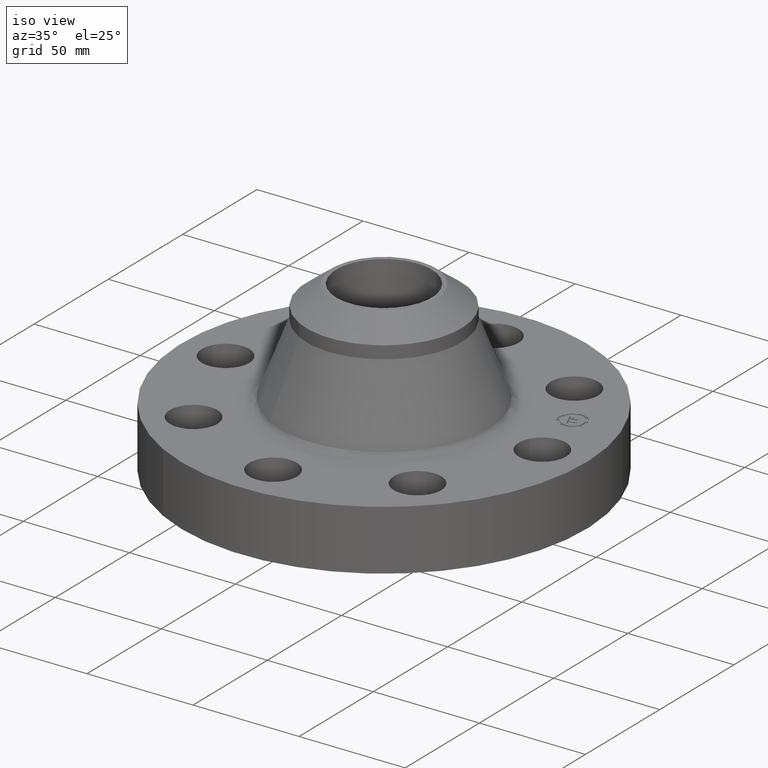
[diagram: clean part render]
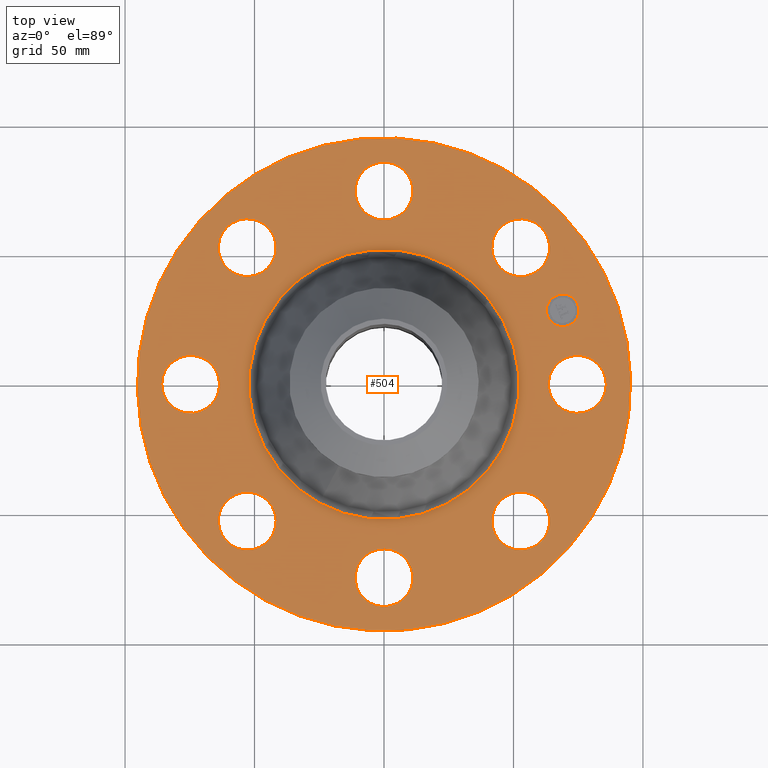
[diagram: tour spotlight — one face highlighted and labeled with its STEP entity id]
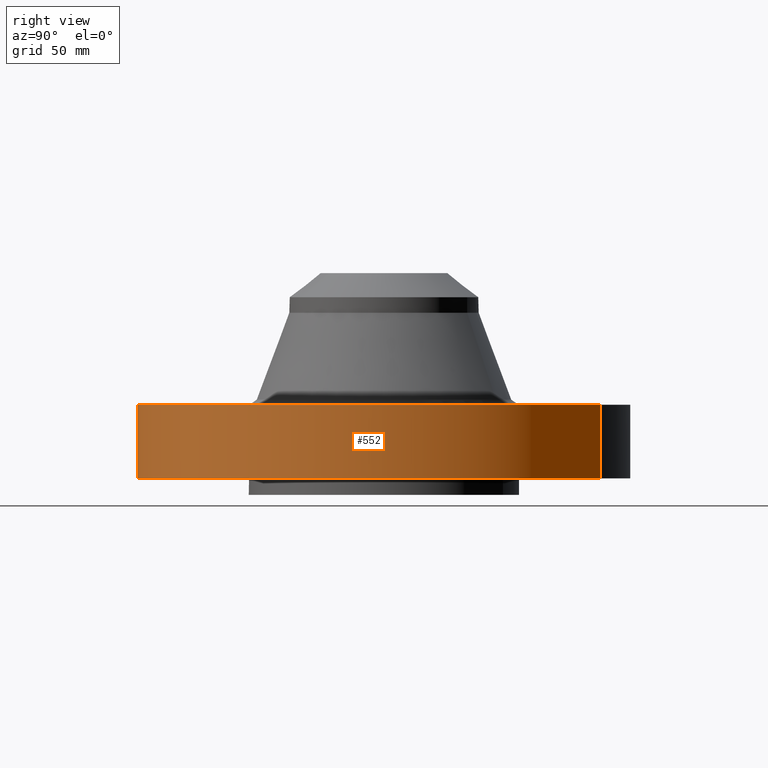
[diagram: tour spotlight — one face highlighted and labeled with its STEP entity id]
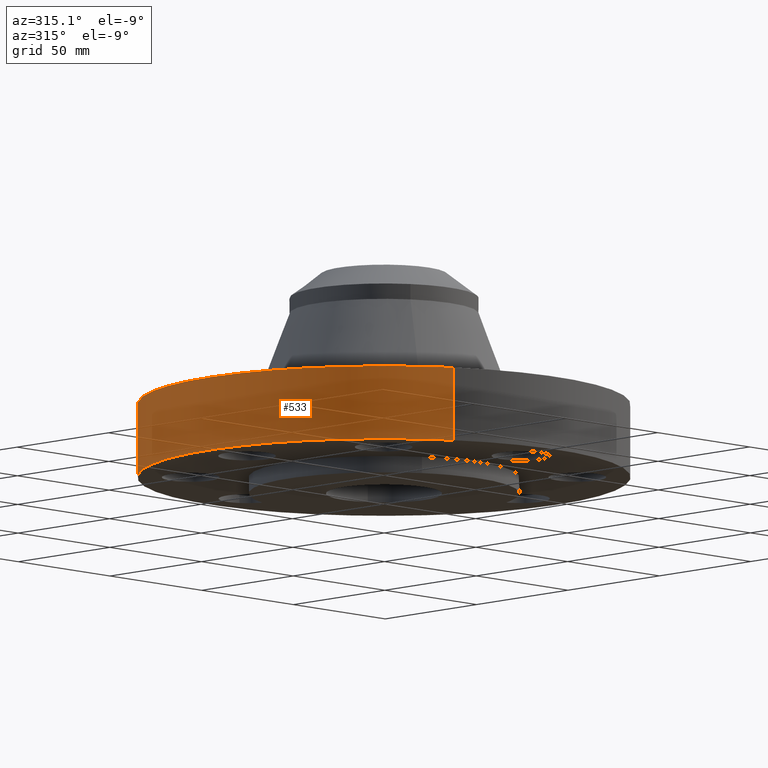
[diagram: tour spotlight — one face highlighted and labeled with its STEP entity id]
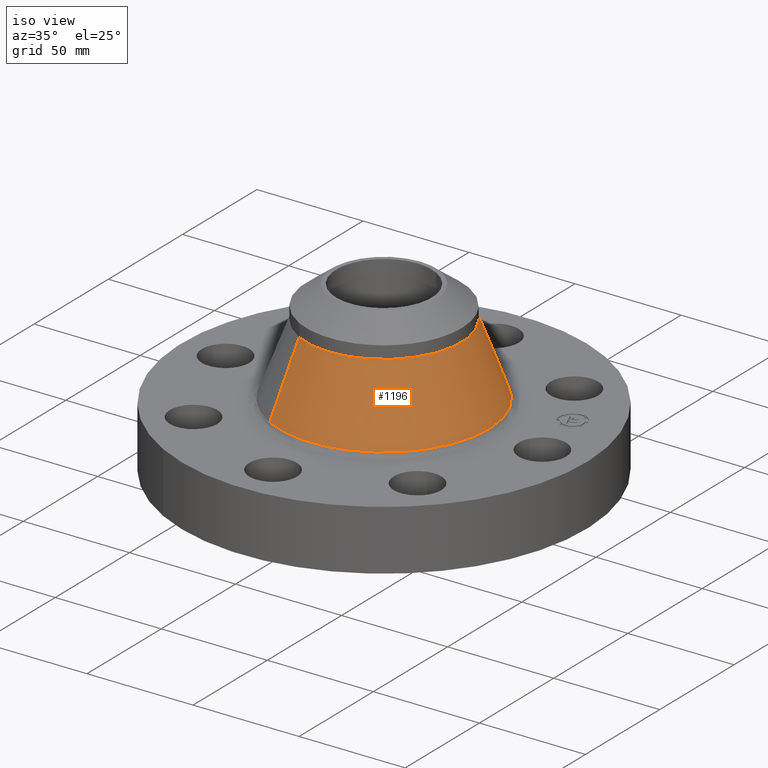
[diagram: tour spotlight — one face highlighted and labeled with its STEP entity id]
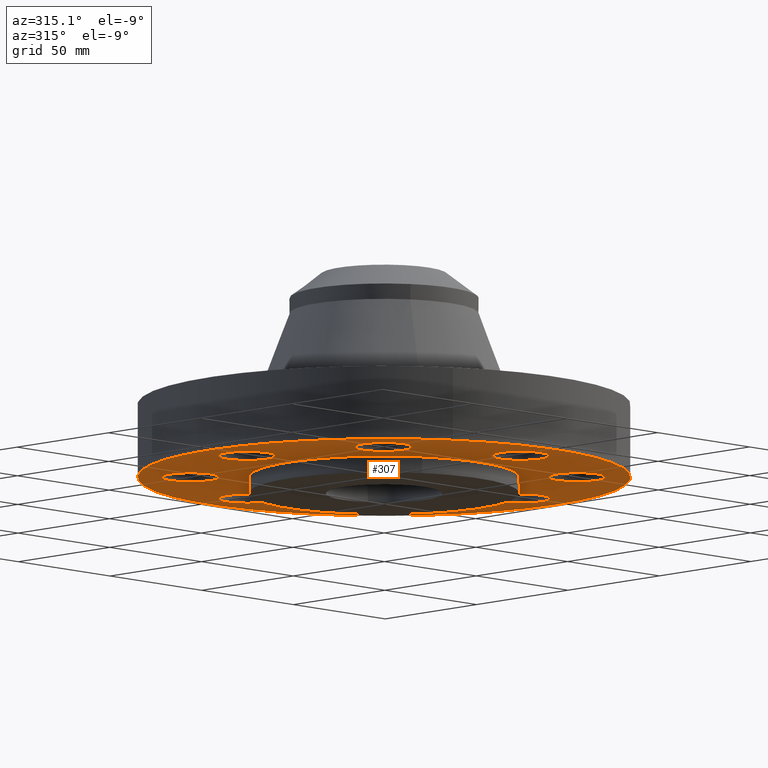
[diagram: tour spotlight — one face highlighted and labeled with its STEP entity id]
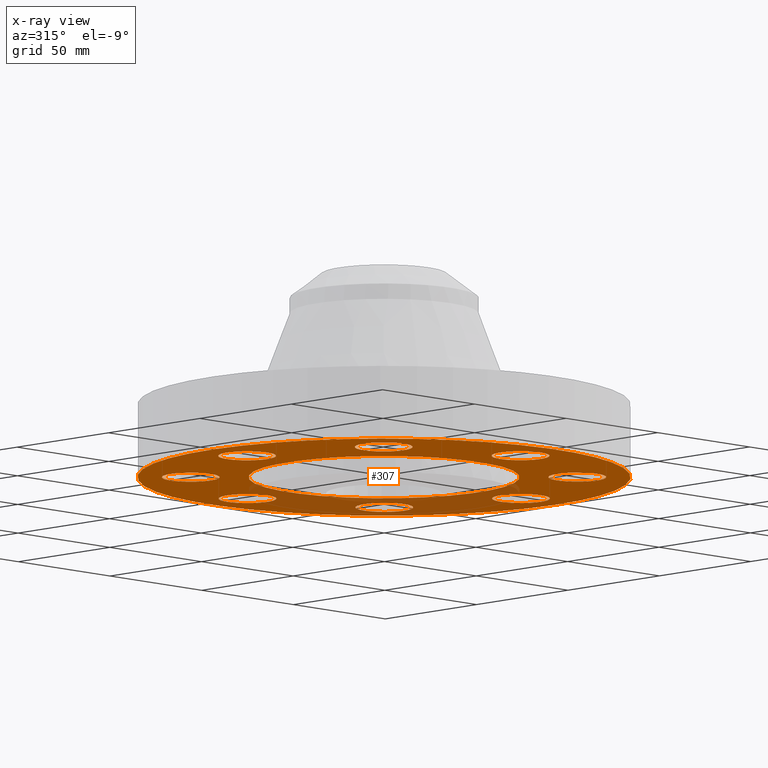
[diagram: x-ray of the same camera — body ghosted, this tour face saturated]
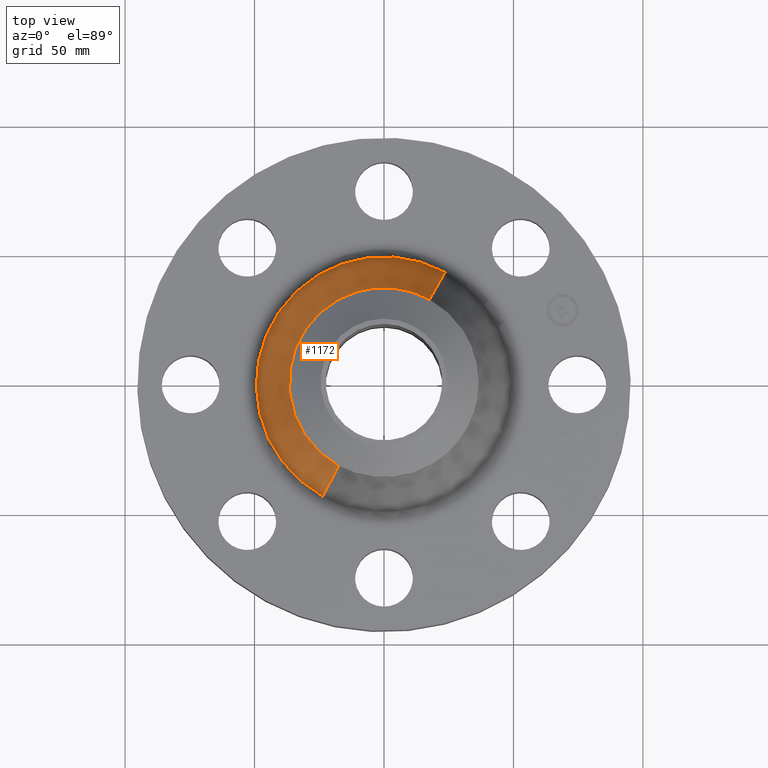
[diagram: tour spotlight — one face highlighted and labeled with its STEP entity id]
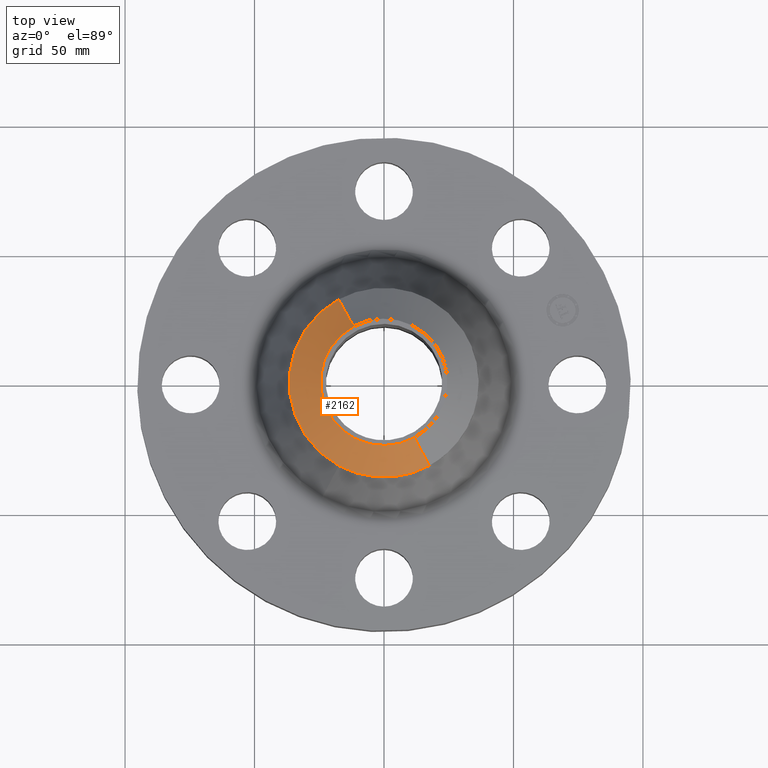
[diagram: tour spotlight — one face highlighted and labeled with its STEP entity id]
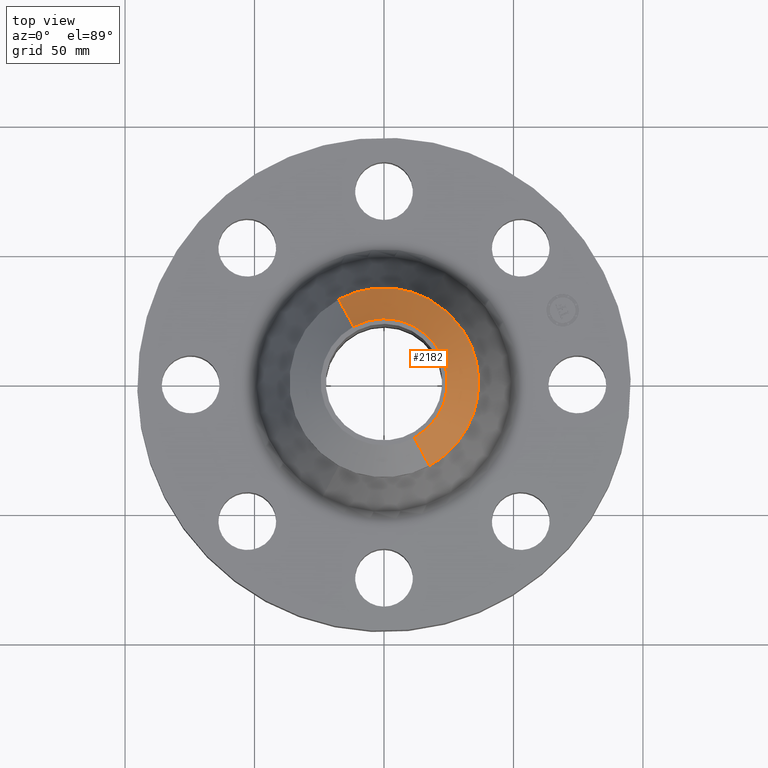
[diagram: tour spotlight — one face highlighted and labeled with its STEP entity id]
A machine part: a face-by-face anatomy tour. The part has 419 B-rep faces; the first image is the clean iso view, then the 8 largest visible faces are spotlighted one at a time (largest first), each with its STEP entity span.

Face 1 — top view, entity #504. In plain terms, the highlighted planar face has unit normal (0, 0, -1).
Definition (entity closure, byte-faithful):
#65=AXIS2_PLACEMENT_3D('Circle Axis2P3D',#63,#64,$) ;
#318=AXIS2_PLACEMENT_3D('Plane Axis2P3D',#315,#316,#317) ;
#322=AXIS2_PLACEMENT_3D('Circle Axis2P3D',#320,#321,$) ;
#331=AXIS2_PLACEMENT_3D('Circle Axis2P3D',#329,#330,$) ;
#344=AXIS2_PLACEMENT_3D('Circle Axis2P3D',#342,#343,$) ;
#353=AXIS2_PLACEMENT_3D('Circle Axis2P3D',#351,#352,$) ;
#362=AXIS2_PLACEMENT_3D('Circle Axis2P3D',#360,#361,$) ;
#371=AXIS2_PLACEMENT_3D('Circle Axis2P3D',#369,#370,$) ;
#380=AXIS2_PLACEMENT_3D('Circle Axis2P3D',#378,#379,$) ;
#389=AXIS2_PLACEMENT_3D('Circle Axis2P3D',#387,#388,$) ;
#398=AXIS2_PLACEMENT_3D('Circle Axis2P3D',#396,#397,$) ;
#407=AXIS2_PLACEMENT_3D('Circle Axis2P3D',#405,#406,$) ;
#416=AXIS2_PLACEMENT_3D('Circle Axis2P3D',#414,#415,$) ;
#425=AXIS2_PLACEMENT_3D('Circle Axis2P3D',#423,#424,$) ;
#434=AXIS2_PLACEMENT_3D('Circle Axis2P3D',#432,#433,$) ;
#443=AXIS2_PLACEMENT_3D('Circle Axis2P3D',#441,#442,$) ;
#452=AXIS2_PLACEMENT_3D('Circle Axis2P3D',#450,#451,$) ;
#461=AXIS2_PLACEMENT_3D('Circle Axis2P3D',#459,#460,$) ;
#470=AXIS2_PLACEMENT_3D('Circle Axis2P3D',#468,#469,$) ;
#479=AXIS2_PLACEMENT_3D('Circle Axis2P3D',#477,#478,$) ;
#488=AXIS2_PLACEMENT_3D('Circle Axis2P3D',#486,#487,$) ;
#497=AXIS2_PLACEMENT_3D('Circle Axis2P3D',#495,#496,$) ;
#46=CARTESIAN_POINT('Vertex',(2.55386367278,0.210947236987,1.11999999999)) ;
#60=CARTESIAN_POINT('Vertex',(3.32613632724,-0.210947236984,1.11999999999)) ;
#63=CARTESIAN_POINT('Axis2P3D Location',(2.94000000001,0.,1.11999999999)) ;
#106=CARTESIAN_POINT('Control Point',(3.32613632724,-0.210947236987,1.11999999999)) ;
#107=CARTESIAN_POINT('Control Point',(3.29300081274,-0.271601389433,1.11999999999)) ;
#108=CARTESIAN_POINT('Control Point',(3.24795588326,-0.325749398821,1.11999999999)) ;
#109=CARTESIAN_POINT('Control Point',(3.1926953225,-0.370262840224,1.11999999999)) ;
#110=CARTESIAN_POINT('Control Point',(3.06769808393,-0.435223603166,1.11999999999)) ;
#111=CARTESIAN_POINT('Control Point',(2.92741808449,-0.448097302225,1.11999999999)) ;
#112=CARTESIAN_POINT('Control Point',(2.85686721097,-0.440497941251,1.11999999999)) ;
#113=CARTESIAN_POINT('Control Point',(2.72254661997,-0.398045742217,1.11999999999)) ;
#114=CARTESIAN_POINT('Control Point',(2.61425060119,-0.307955883249,1.12)) ;
#115=CARTESIAN_POINT('Control Point',(2.56973715979,-0.252695322491,1.12)) ;
#116=CARTESIAN_POINT('Control Point',(2.50477639684,-0.127698083922,1.12)) ;
#117=CARTESIAN_POINT('Control Point',(2.49190269778,0.0125819155223,1.12)) ;
#118=CARTESIAN_POINT('Control Point',(2.49950205876,0.0831327890369,1.12)) ;
#119=CARTESIAN_POINT('Control Point',(2.52072815828,0.150293084541,1.12)) ;
#120=CARTESIAN_POINT('Control Point',(2.55386367278,0.210947236987,1.12)) ;
#315=CARTESIAN_POINT('Axis2P3D Location',(0.,3.75000000002,1.12)) ;
#320=CARTESIAN_POINT('Axis2P3D Location',(1.67844740731E-015,2.00009387879E-011,1.12)) ;
#324=CARTESIAN_POINT('Vertex',(1.79784576977,3.29093460711,1.12)) ;
#326=CARTESIAN_POINT('Vertex',(-1.79784576978,-3.29093460711,1.12)) ;
#329=CARTESIAN_POINT('Axis2P3D Location',(3.08521012762E-011,3.14429147636E-012,1.12)) ;
#342=CARTESIAN_POINT('Axis2P3D Location',(1.28121485424E-011,-2.36649894781E-011,1.12)) ;
#346=CARTESIAN_POINT('Vertex',(-0.984191432936,-1.8015503338,1.12)) ;
#348=CARTESIAN_POINT('Vertex',(0.98419143294,1.80155033381,1.12)) ;
#351=CARTESIAN_POINT('Axis2P3D Location',(-1.28121485424E-011,-9.66673810115E-012,1.12)) ;
#360=CARTESIAN_POINT('Axis2P3D Location',(2.07889393664,-2.07889393672,1.12)) ;
#364=CARTESIAN_POINT('Vertex',(2.20277133038,-2.50109577388,1.12)) ;
#366=CARTESIAN_POINT('Vertex',(1.955016543,-1.6566920995,1.11999999999)) ;
#369=CARTESIAN_POINT('Axis2P3D Location',(2.07889393673,-2.07889393669,1.12)) ;
#378=CARTESIAN_POINT('Axis2P3D Location',(3.49676543189E-017,-2.94000000002,1.12)) ;
#382=CARTESIAN_POINT('Vertex',(-0.210947236984,-3.32613632724,1.11999999999)) ;
#384=CARTESIAN_POINT('Vertex',(0.210947236987,-2.55386367278,1.11999999999)) ;
#387=CARTESIAN_POINT('Axis2P3D Location',(-3.49676543189E-017,-2.94000000002,1.12)) ;
#396=CARTESIAN_POINT('Axis2P3D Location',(-2.07889393667,-2.07889393675,1.12)) ;
#400=CARTESIAN_POINT('Vertex',(-2.5010957739,-2.20277133044,1.12)) ;
#402=CARTESIAN_POINT('Vertex',(-1.6566920995,-1.955016543,1.11999999999)) ;
#405=CARTESIAN_POINT('Axis2P3D Location',(-2.0788939367,-2.07889393666,1.12)) ;
#414=CARTESIAN_POINT('Axis2P3D Location',(-2.93999999999,3.28119683655E-011,1.12)) ;
#418=CARTESIAN_POINT('Vertex',(-3.32613632724,0.210947236984,1.11999999999)) ;
#420=CARTESIAN_POINT('Vertex',(-2.55386367278,-0.210947236987,1.11999999999)) ;
#423=CARTESIAN_POINT('Axis2P3D Location',(-2.94000000001,7.1887902455E-012,1.12)) ;
#432=CARTESIAN_POINT('Axis2P3D Location',(-2.07889393669,2.07889393671,1.12)) ;
#436=CARTESIAN_POINT('Vertex',(-2.20277133038,2.50109577392,1.12)) ;
#438=CARTESIAN_POINT('Vertex',(-1.955016543,1.6566920995,1.11999999999)) ;
#441=CARTESIAN_POINT('Axis2P3D Location',(-2.07889393669,2.07889393671,1.12)) ;
#450=CARTESIAN_POINT('Axis2P3D Location',(1.28117289306E-011,2.94000000001,1.12)) ;
#454=CARTESIAN_POINT('Vertex',(0.210947236984,3.32613632724,1.11999999999)) ;
#456=CARTESIAN_POINT('Vertex',(-0.210947236987,2.55386367278,1.11999999999)) ;
#459=CARTESIAN_POINT('Axis2P3D Location',(-1.28117289306E-011,2.94000000003,1.12)) ;
#468=CARTESIAN_POINT('Axis2P3D Location',(2.07889393669,2.07889393671,1.12)) ;
#472=CARTESIAN_POINT('Vertex',(2.5010957739,2.2027713304,1.12)) ;
#474=CARTESIAN_POINT('Vertex',(1.6566920995,1.955016543,1.11999999999)) ;
#477=CARTESIAN_POINT('Axis2P3D Location',(2.07889393669,2.07889393671,1.12)) ;
#486=CARTESIAN_POINT('Axis2P3D Location',(2.71620582554,1.12508929115,1.12)) ;
#490=CARTESIAN_POINT('Vertex',(2.62149167606,1.35374947548,1.12)) ;
#492=CARTESIAN_POINT('Vertex',(2.8109199751,0.896429106848,1.12)) ;
#495=CARTESIAN_POINT('Axis2P3D Location',(2.71620582563,1.12508929118,1.12)) ;
#64=DIRECTION('Axis2P3D Direction',(0.,-0.,-0.0393700787402)) ;
#316=DIRECTION('Axis2P3D Direction',(0.,0.,-0.0393700787402)) ;
#317=DIRECTION('Axis2P3D XDirection',(0.0393700787402,0.,0.)) ;
#321=DIRECTION('Axis2P3D Direction',(0.,0.,-0.0393700787402)) ;
#330=DIRECTION('Axis2P3D Direction',(0.,0.,-0.0393700787402)) ;
#343=DIRECTION('Axis2P3D Direction',(0.,0.,-0.0393700787402)) ;
#352=DIRECTION('Axis2P3D Direction',(0.,0.,-0.0393700787402)) ;
#361=DIRECTION('Axis2P3D Direction',(0.,0.,-0.0393700787402)) ;
#370=DIRECTION('Axis2P3D Direction',(0.,0.,-0.0393700787402)) ;
#379=DIRECTION('Axis2P3D Direction',(0.,0.,-0.0393700787402)) ;
#388=DIRECTION('Axis2P3D Direction',(0.,0.,-0.0393700787402)) ;
#397=DIRECTION('Axis2P3D Direction',(0.,0.,-0.0393700787402)) ;
#406=DIRECTION('Axis2P3D Direction',(0.,0.,-0.0393700787402)) ;
#415=DIRECTION('Axis2P3D Direction',(0.,0.,-0.0393700787402)) ;
#424=DIRECTION('Axis2P3D Direction',(0.,0.,-0.0393700787402)) ;
#433=DIRECTION('Axis2P3D Direction',(0.,0.,-0.0393700787402)) ;
#442=DIRECTION('Axis2P3D Direction',(0.,0.,-0.0393700787402)) ;
#451=DIRECTION('Axis2P3D Direction',(0.,0.,-0.0393700787402)) ;
#460=DIRECTION('Axis2P3D Direction',(0.,0.,-0.0393700787402)) ;
#469=DIRECTION('Axis2P3D Direction',(0.,0.,-0.0393700787402)) ;
#478=DIRECTION('Axis2P3D Direction',(0.,0.,-0.0393700787402)) ;
#487=DIRECTION('Axis2P3D Direction',(0.,0.,-0.0393700787402)) ;
#496=DIRECTION('Axis2P3D Direction',(0.,0.,-0.0393700787402)) ;
#335=ORIENTED_EDGE('',*,*,#328,.F.) ;
#336=ORIENTED_EDGE('',*,*,#333,.F.) ;
#339=ORIENTED_EDGE('',*,*,#67,.T.) ;
#340=ORIENTED_EDGE('',*,*,#121,.T.) ;
#357=ORIENTED_EDGE('',*,*,#350,.T.) ;
#358=ORIENTED_EDGE('',*,*,#355,.T.) ;
#375=ORIENTED_EDGE('',*,*,#368,.T.) ;
#376=ORIENTED_EDGE('',*,*,#373,.T.) ;
#393=ORIENTED_EDGE('',*,*,#386,.T.) ;
#394=ORIENTED_EDGE('',*,*,#391,.T.) ;
#411=ORIENTED_EDGE('',*,*,#404,.T.) ;
#412=ORIENTED_EDGE('',*,*,#409,.T.) ;
#429=ORIENTED_EDGE('',*,*,#422,.T.) ;
#430=ORIENTED_EDGE('',*,*,#427,.T.) ;
#447=ORIENTED_EDGE('',*,*,#440,.T.) ;
#448=ORIENTED_EDGE('',*,*,#445,.T.) ;
#465=ORIENTED_EDGE('',*,*,#458,.T.) ;
#466=ORIENTED_EDGE('',*,*,#463,.T.) ;
#483=ORIENTED_EDGE('',*,*,#476,.T.) ;
#484=ORIENTED_EDGE('',*,*,#481,.T.) ;
#501=ORIENTED_EDGE('',*,*,#494,.T.) ;
#502=ORIENTED_EDGE('',*,*,#499,.T.) ;
#341=FACE_BOUND('',#338,.T.) ;
#359=FACE_BOUND('',#356,.T.) ;
#377=FACE_BOUND('',#374,.T.) ;
#395=FACE_BOUND('',#392,.T.) ;
#413=FACE_BOUND('',#410,.T.) ;
#431=FACE_BOUND('',#428,.T.) ;
#449=FACE_BOUND('',#446,.T.) ;
#467=FACE_BOUND('',#464,.T.) ;
#485=FACE_BOUND('',#482,.T.) ;
#503=FACE_BOUND('',#500,.T.) ;
#504=ADVANCED_FACE('PartBody',(#337,#341,#359,#377,#395,#413,#431,#449,#467,#485,#503),#319,.F.) ;
#105=B_SPLINE_CURVE_WITH_KNOTS('',5,(#106,#107,#108,#109,#110,#111,#112,#113,#114,#115,#116,#117,#118,#119,#120),.UNSPECIFIED.,.F.,.U.,(6,3,3,3,6),(-17.5552197483,-8.77760987417,0.,8.77760987417,17.5552197483),.UNSPECIFIED.) ;
#66=CIRCLE('generated circle',#65,0.440000000002) ;
#323=CIRCLE('generated circle',#322,3.75000000005) ;
#332=CIRCLE('generated circle',#331,3.75000000005) ;
#345=CIRCLE('generated circle',#344,2.05285566513) ;
#354=CIRCLE('generated circle',#353,2.05285566513) ;
#363=CIRCLE('generated circle',#362,0.439999999984) ;
#372=CIRCLE('generated circle',#371,0.439999999984) ;
#381=CIRCLE('generated circle',#380,0.44000000002) ;
#390=CIRCLE('generated circle',#389,0.44000000002) ;
#399=CIRCLE('generated circle',#398,0.44000000003) ;
#408=CIRCLE('generated circle',#407,0.44000000003) ;
#417=CIRCLE('generated circle',#416,0.439999999988) ;
#426=CIRCLE('generated circle',#425,0.439999999988) ;
#435=CIRCLE('generated circle',#434,0.440000000019) ;
#444=CIRCLE('generated circle',#443,0.440000000019) ;
#453=CIRCLE('generated circle',#452,0.439999999988) ;
#462=CIRCLE('generated circle',#461,0.439999999988) ;
#471=CIRCLE('generated circle',#470,0.440000000019) ;
#480=CIRCLE('generated circle',#479,0.440000000019) ;
#489=CIRCLE('generated circle',#488,0.247500000023) ;
#498=CIRCLE('generated circle',#497,0.247500000023) ;
#67=EDGE_CURVE('',#47,#61,#66,.T.) ;
#121=EDGE_CURVE('',#61,#47,#105,.T.) ;
#328=EDGE_CURVE('',#325,#327,#323,.T.) ;
#333=EDGE_CURVE('',#327,#325,#332,.T.) ;
#350=EDGE_CURVE('',#347,#349,#345,.T.) ;
#355=EDGE_CURVE('',#349,#347,#354,.T.) ;
#368=EDGE_CURVE('',#365,#367,#363,.T.) ;
#373=EDGE_CURVE('',#367,#365,#372,.T.) ;
#386=EDGE_CURVE('',#383,#385,#381,.T.) ;
#391=EDGE_CURVE('',#385,#383,#390,.T.) ;
#404=EDGE_CURVE('',#401,#403,#399,.T.) ;
#409=EDGE_CURVE('',#403,#401,#408,.T.) ;
#422=EDGE_CURVE('',#419,#421,#417,.T.) ;
#427=EDGE_CURVE('',#421,#419,#426,.T.) ;
#440=EDGE_CURVE('',#437,#439,#435,.T.) ;
#445=EDGE_CURVE('',#439,#437,#444,.T.) ;
#458=EDGE_CURVE('',#455,#457,#453,.T.) ;
#463=EDGE_CURVE('',#457,#455,#462,.T.) ;
#476=EDGE_CURVE('',#473,#475,#471,.T.) ;
#481=EDGE_CURVE('',#475,#473,#480,.T.) ;
#494=EDGE_CURVE('',#491,#493,#489,.T.) ;
#499=EDGE_CURVE('',#493,#491,#498,.T.) ;
#334=EDGE_LOOP('',(#335,#336)) ;
#338=EDGE_LOOP('',(#339,#340)) ;
#356=EDGE_LOOP('',(#357,#358)) ;
#374=EDGE_LOOP('',(#375,#376)) ;
#392=EDGE_LOOP('',(#393,#394)) ;
#410=EDGE_LOOP('',(#411,#412)) ;
#428=EDGE_LOOP('',(#429,#430)) ;
#446=EDGE_LOOP('',(#447,#448)) ;
#464=EDGE_LOOP('',(#465,#466)) ;
#482=EDGE_LOOP('',(#483,#484)) ;
#500=EDGE_LOOP('',(#501,#502)) ;
#337=FACE_OUTER_BOUND('',#334,.T.) ;
#319=PLANE('',#318) ;
#47=VERTEX_POINT('',#46) ;
#61=VERTEX_POINT('',#60) ;
#325=VERTEX_POINT('',#324) ;
#327=VERTEX_POINT('',#326) ;
#347=VERTEX_POINT('',#346) ;
#349=VERTEX_POINT('',#348) ;
#365=VERTEX_POINT('',#364) ;
#367=VERTEX_POINT('',#366) ;
#383=VERTEX_POINT('',#382) ;
#385=VERTEX_POINT('',#384) ;
#401=VERTEX_POINT('',#400) ;
#403=VERTEX_POINT('',#402) ;
#419=VERTEX_POINT('',#418) ;
#421=VERTEX_POINT('',#420) ;
#437=VERTEX_POINT('',#436) ;
#439=VERTEX_POINT('',#438) ;
#455=VERTEX_POINT('',#454) ;
#457=VERTEX_POINT('',#456) ;
#473=VERTEX_POINT('',#472) ;
#475=VERTEX_POINT('',#474) ;
#491=VERTEX_POINT('',#490) ;
#493=VERTEX_POINT('',#492) ;

Face 2 — right view, entity #552. In plain terms, the highlighted cylindrical surface (partial cylindrical patch) has radius 95.25 mm, axis along (0, 0, -1).
Definition (entity closure, byte-faithful):
#152=AXIS2_PLACEMENT_3D('Circle Axis2P3D',#150,#151,$) ;
#322=AXIS2_PLACEMENT_3D('Circle Axis2P3D',#320,#321,$) ;
#544=AXIS2_PLACEMENT_3D('Cylinder Axis2P3D',#541,#542,#543) ;
#145=CARTESIAN_POINT('Vertex',(-1.79784576981,-3.29093460708,0.)) ;
#147=CARTESIAN_POINT('Vertex',(1.79784576978,3.29093460711,-2.75463991075E-011)) ;
#150=CARTESIAN_POINT('Axis2P3D Location',(1.28121485424E-011,2.12099804037E-012,0.)) ;
#320=CARTESIAN_POINT('Axis2P3D Location',(1.67844740731E-015,2.00009387879E-011,1.12)) ;
#324=CARTESIAN_POINT('Vertex',(1.79784576977,3.29093460711,1.12)) ;
#326=CARTESIAN_POINT('Vertex',(-1.79784576978,-3.29093460711,1.12)) ;
#517=CARTESIAN_POINT('Line Origine',(-1.79784576978,-3.29093460711,0.559999999988)) ;
#522=CARTESIAN_POINT('Line Origine',(1.79784576978,3.29093460711,0.559999999988)) ;
#541=CARTESIAN_POINT('Axis2P3D Location',(0.,0.,1.43500000001)) ;
#151=DIRECTION('Axis2P3D Direction',(0.,0.,-0.0393700787402)) ;
#321=DIRECTION('Axis2P3D Direction',(0.,0.,-0.0393700787402)) ;
#518=DIRECTION('Vector Direction',(0.,0.,-0.0393700787402)) ;
#523=DIRECTION('Vector Direction',(0.,0.,-0.0393700787402)) ;
#542=DIRECTION('Axis2P3D Direction',(0.,0.,-0.0393700787402)) ;
#543=DIRECTION('Axis2P3D XDirection',(0.0188750212049,0.0345504945626,0.)) ;
#519=VECTOR('Line Direction',#518,0.0393700787402) ;
#524=VECTOR('Line Direction',#523,0.0393700787402) ;
#547=ORIENTED_EDGE('',*,*,#154,.F.) ;
#548=ORIENTED_EDGE('',*,*,#526,.T.) ;
#549=ORIENTED_EDGE('',*,*,#328,.T.) ;
#550=ORIENTED_EDGE('',*,*,#521,.F.) ;
#552=ADVANCED_FACE('PartBody',(#551),#545,.T.) ;
#153=CIRCLE('generated circle',#152,3.75000000002) ;
#323=CIRCLE('generated circle',#322,3.75000000005) ;
#545=CYLINDRICAL_SURFACE('generated cylinder',#544,3.75000000002) ;
#154=EDGE_CURVE('',#148,#146,#153,.T.) ;
#328=EDGE_CURVE('',#325,#327,#323,.T.) ;
#521=EDGE_CURVE('',#146,#327,#520,.F.) ;
#526=EDGE_CURVE('',#148,#325,#525,.F.) ;
#546=EDGE_LOOP('',(#547,#548,#549,#550)) ;
#551=FACE_OUTER_BOUND('',#546,.T.) ;
#520=LINE('Line',#517,#519) ;
#525=LINE('Line',#522,#524) ;
#146=VERTEX_POINT('',#145) ;
#148=VERTEX_POINT('',#147) ;
#325=VERTEX_POINT('',#324) ;
#327=VERTEX_POINT('',#326) ;

Face 3 — auxiliary view, entity #533. In plain terms, the highlighted cylindrical surface (partial cylindrical patch) has radius 95.25 mm, axis along (0, 0, -1).
Definition (entity closure, byte-faithful):
#143=AXIS2_PLACEMENT_3D('Circle Axis2P3D',#141,#142,$) ;
#331=AXIS2_PLACEMENT_3D('Circle Axis2P3D',#329,#330,$) ;
#515=AXIS2_PLACEMENT_3D('Cylinder Axis2P3D',#512,#513,#514) ;
#141=CARTESIAN_POINT('Axis2P3D Location',(-1.28121485424E-011,1.61192494173E-011,0.)) ;
#145=CARTESIAN_POINT('Vertex',(-1.79784576981,-3.29093460708,0.)) ;
#147=CARTESIAN_POINT('Vertex',(1.79784576978,3.29093460711,-2.75463991075E-011)) ;
#324=CARTESIAN_POINT('Vertex',(1.79784576977,3.29093460711,1.12)) ;
#326=CARTESIAN_POINT('Vertex',(-1.79784576978,-3.29093460711,1.12)) ;
#329=CARTESIAN_POINT('Axis2P3D Location',(3.08521012762E-011,3.14429147636E-012,1.12)) ;
#512=CARTESIAN_POINT('Axis2P3D Location',(0.,0.,1.43500000001)) ;
#517=CARTESIAN_POINT('Line Origine',(-1.79784576978,-3.29093460711,0.559999999988)) ;
#522=CARTESIAN_POINT('Line Origine',(1.79784576978,3.29093460711,0.559999999988)) ;
#142=DIRECTION('Axis2P3D Direction',(0.,0.,-0.0393700787402)) ;
#330=DIRECTION('Axis2P3D Direction',(0.,0.,-0.0393700787402)) ;
#513=DIRECTION('Axis2P3D Direction',(0.,0.,-0.0393700787402)) ;
#514=DIRECTION('Axis2P3D XDirection',(-0.0188750212049,-0.0345504945626,0.)) ;
#518=DIRECTION('Vector Direction',(0.,0.,-0.0393700787402)) ;
#523=DIRECTION('Vector Direction',(0.,0.,-0.0393700787402)) ;
#519=VECTOR('Line Direction',#518,0.0393700787402) ;
#524=VECTOR('Line Direction',#523,0.0393700787402) ;
#528=ORIENTED_EDGE('',*,*,#149,.F.) ;
#529=ORIENTED_EDGE('',*,*,#521,.T.) ;
#530=ORIENTED_EDGE('',*,*,#333,.T.) ;
#531=ORIENTED_EDGE('',*,*,#526,.F.) ;
#533=ADVANCED_FACE('PartBody',(#532),#516,.T.) ;
#144=CIRCLE('generated circle',#143,3.75000000002) ;
#332=CIRCLE('generated circle',#331,3.75000000005) ;
#516=CYLINDRICAL_SURFACE('generated cylinder',#515,3.75000000002) ;
#149=EDGE_CURVE('',#146,#148,#144,.T.) ;
#333=EDGE_CURVE('',#327,#325,#332,.T.) ;
#521=EDGE_CURVE('',#146,#327,#520,.F.) ;
#526=EDGE_CURVE('',#148,#325,#525,.F.) ;
#527=EDGE_LOOP('',(#528,#529,#530,#531)) ;
#532=FACE_OUTER_BOUND('',#527,.T.) ;
#520=LINE('Line',#517,#519) ;
#525=LINE('Line',#522,#524) ;
#146=VERTEX_POINT('',#145) ;
#148=VERTEX_POINT('',#147) ;
#325=VERTEX_POINT('',#324) ;
#327=VERTEX_POINT('',#326) ;

Face 4 — iso view, entity #1196. In plain terms, the highlighted conical surface has half-angle 20.753 deg.
Definition (entity closure, byte-faithful):
#1015=AXIS2_PLACEMENT_3D('Circle Axis2P3D',#1013,#1014,$) ;
#1183=AXIS2_PLACEMENT_3D('Cone Axis2P3D',#1180,#1181,#1182) ;
#1187=AXIS2_PLACEMENT_3D('Circle Axis2P3D',#1185,#1186,$) ;
#979=CARTESIAN_POINT('Vertex',(-0.930393049894,-1.7030730542,1.19747989437)) ;
#986=CARTESIAN_POINT('Vertex',(0.930393049895,1.7030730542,1.19747989437)) ;
#1013=CARTESIAN_POINT('Axis2P3D Location',(0.,0.,1.19747989437)) ;
#1147=CARTESIAN_POINT('Line Origine',(-0.810382912747,-1.48339597167,1.85809802749)) ;
#1151=CARTESIAN_POINT('Vertex',(-0.690372775594,-1.26371888913,2.51871616061)) ;
#1158=CARTESIAN_POINT('Vertex',(0.690372775595,1.26371888913,2.51871616061)) ;
#1161=CARTESIAN_POINT('Line Origine',(0.810382912747,1.48339597167,1.85809802749)) ;
#1180=CARTESIAN_POINT('Axis2P3D Location',(0.,0.,2.51871616061)) ;
#1185=CARTESIAN_POINT('Axis2P3D Location',(0.,0.,2.51871616061)) ;
#1014=DIRECTION('Axis2P3D Direction',(-0.,0.,-0.0393700787402)) ;
#1148=DIRECTION('Vector Direction',(-0.00668806579644,-0.0122424223224,-0.0368157027855)) ;
#1162=DIRECTION('Vector Direction',(0.00668806579644,0.0122424223224,-0.0368157027855)) ;
#1181=DIRECTION('Axis2P3D Direction',(0.,0.,-0.0393700787402)) ;
#1182=DIRECTION('Axis2P3D XDirection',(0.0188750212049,0.0345504945626,0.)) ;
#1186=DIRECTION('Axis2P3D Direction',(-0.,0.,-0.0393700787402)) ;
#1149=VECTOR('Line Direction',#1148,0.0393700787402) ;
#1163=VECTOR('Line Direction',#1162,0.0393700787402) ;
#1191=ORIENTED_EDGE('',*,*,#1017,.F.) ;
#1192=ORIENTED_EDGE('',*,*,#1165,.T.) ;
#1193=ORIENTED_EDGE('',*,*,#1189,.T.) ;
#1194=ORIENTED_EDGE('',*,*,#1153,.F.) ;
#1196=ADVANCED_FACE('PartBody',(#1195),#1184,.T.) ;
#1016=CIRCLE('generated circle',#1015,1.94064140305) ;
#1188=CIRCLE('generated circle',#1187,1.44000000001) ;
#1184=CONICAL_SURFACE('Cone',#1183,1.44000000001,0.362201990694) ;
#1017=EDGE_CURVE('',#987,#980,#1016,.T.) ;
#1153=EDGE_CURVE('',#980,#1152,#1150,.F.) ;
#1165=EDGE_CURVE('',#987,#1159,#1164,.F.) ;
#1189=EDGE_CURVE('',#1159,#1152,#1188,.T.) ;
#1190=EDGE_LOOP('',(#1191,#1192,#1193,#1194)) ;
#1195=FACE_OUTER_BOUND('',#1190,.T.) ;
#1150=LINE('Line',#1147,#1149) ;
#1164=LINE('Line',#1161,#1163) ;
#980=VERTEX_POINT('',#979) ;
#987=VERTEX_POINT('',#986) ;
#1152=VERTEX_POINT('',#1151) ;
#1159=VERTEX_POINT('',#1158) ;

Face 5 — auxiliary view, entity #307. An x-ray twin of the same camera follows (body ghosted, this face saturated) — the face is partly hidden behind the body. In plain terms, the highlighted planar face has unit normal (0, 0, -1).
Definition (entity closure, byte-faithful):
#51=AXIS2_PLACEMENT_3D('Circle Axis2P3D',#49,#50,$) ;
#139=AXIS2_PLACEMENT_3D('Plane Axis2P3D',#136,#137,#138) ;
#143=AXIS2_PLACEMENT_3D('Circle Axis2P3D',#141,#142,$) ;
#152=AXIS2_PLACEMENT_3D('Circle Axis2P3D',#150,#151,$) ;
#165=AXIS2_PLACEMENT_3D('Circle Axis2P3D',#163,#164,$) ;
#174=AXIS2_PLACEMENT_3D('Circle Axis2P3D',#172,#173,$) ;
#183=AXIS2_PLACEMENT_3D('Circle Axis2P3D',#181,#182,$) ;
#192=AXIS2_PLACEMENT_3D('Circle Axis2P3D',#190,#191,$) ;
#201=AXIS2_PLACEMENT_3D('Circle Axis2P3D',#199,#200,$) ;
#210=AXIS2_PLACEMENT_3D('Circle Axis2P3D',#208,#209,$) ;
#219=AXIS2_PLACEMENT_3D('Circle Axis2P3D',#217,#218,$) ;
#228=AXIS2_PLACEMENT_3D('Circle Axis2P3D',#226,#227,$) ;
#237=AXIS2_PLACEMENT_3D('Circle Axis2P3D',#235,#236,$) ;
#246=AXIS2_PLACEMENT_3D('Circle Axis2P3D',#244,#245,$) ;
#255=AXIS2_PLACEMENT_3D('Circle Axis2P3D',#253,#254,$) ;
#264=AXIS2_PLACEMENT_3D('Circle Axis2P3D',#262,#263,$) ;
#273=AXIS2_PLACEMENT_3D('Circle Axis2P3D',#271,#272,$) ;
#282=AXIS2_PLACEMENT_3D('Circle Axis2P3D',#280,#281,$) ;
#291=AXIS2_PLACEMENT_3D('Circle Axis2P3D',#289,#290,$) ;
#300=AXIS2_PLACEMENT_3D('Circle Axis2P3D',#298,#299,$) ;
#44=CARTESIAN_POINT('Vertex',(2.55386367278,0.210947236988,3.15885200761E-011)) ;
#49=CARTESIAN_POINT('Axis2P3D Location',(2.94000000001,0.,3.15885200761E-011)) ;
#53=CARTESIAN_POINT('Vertex',(3.32613632724,-0.210947236987,3.15885200761E-011)) ;
#89=CARTESIAN_POINT('Control Point',(3.32613632724,-0.210947236987,3.15885200761E-011)) ;
#90=CARTESIAN_POINT('Control Point',(3.29300081274,-0.271601389433,3.00090940723E-011)) ;
#91=CARTESIAN_POINT('Control Point',(3.24795588326,-0.325749398821,2.84296680685E-011)) ;
#92=CARTESIAN_POINT('Control Point',(3.1926953225,-0.370262840224,2.68502770324E-011)) ;
#93=CARTESIAN_POINT('Control Point',(3.06769808393,-0.435223603166,2.36914250248E-011)) ;
#94=CARTESIAN_POINT('Control Point',(2.92741808449,-0.448097302225,2.05325730171E-011)) ;
#95=CARTESIAN_POINT('Control Point',(2.85686721097,-0.440497941251,1.8953181981E-011)) ;
#96=CARTESIAN_POINT('Control Point',(2.72254661997,-0.398045742217,1.57943299734E-011)) ;
#97=CARTESIAN_POINT('Control Point',(2.61425060119,-0.307955883249,1.26354779658E-011)) ;
#98=CARTESIAN_POINT('Control Point',(2.56973715979,-0.252695322491,1.10560869296E-011)) ;
#99=CARTESIAN_POINT('Control Point',(2.50477639684,-0.127698083922,7.897234922E-012)) ;
#100=CARTESIAN_POINT('Control Point',(2.49190269778,0.0125819155223,4.73838291438E-012)) ;
#101=CARTESIAN_POINT('Control Point',(2.49950205876,0.0831327890369,3.15899187823E-012)) ;
#102=CARTESIAN_POINT('Control Point',(2.52072815828,0.150293084541,1.57956587442E-012)) ;
#103=CARTESIAN_POINT('Control Point',(2.55386367278,0.210947236987,1.39870617276E-016)) ;
#136=CARTESIAN_POINT('Axis2P3D Location',(0.,2.06000000001,0.)) ;
#141=CARTESIAN_POINT('Axis2P3D Location',(-1.28121485424E-011,1.61192494173E-011,0.)) ;
#145=CARTESIAN_POINT('Vertex',(-1.79784576981,-3.29093460708,0.)) ;
#147=CARTESIAN_POINT('Vertex',(1.79784576978,3.29093460711,-2.75463991075E-011)) ;
#150=CARTESIAN_POINT('Axis2P3D Location',(1.28121485424E-011,2.12099804037E-012,0.)) ;
#163=CARTESIAN_POINT('Axis2P3D Location',(-3.08534999824E-011,-1.06905910196E-011,0.)) ;
#167=CARTESIAN_POINT('Vertex',(0.98761660953,1.8078200775,-2.75463991075E-011)) ;
#169=CARTESIAN_POINT('Vertex',(-0.98761660953,-1.8078200775,-2.75463991075E-011)) ;
#172=CARTESIAN_POINT('Axis2P3D Location',(5.59482469102E-016,-2.75461193663E-011,0.)) ;
#181=CARTESIAN_POINT('Axis2P3D Location',(2.07889393669,-2.07889393671,0.)) ;
#185=CARTESIAN_POINT('Vertex',(1.95501654299,-1.6566920995,0.)) ;
#187=CARTESIAN_POINT('Vertex',(2.20277133038,-2.50109577393,0.)) ;
#190=CARTESIAN_POINT('Axis2P3D Location',(2.07889393669,-2.07889393671,0.)) ;
#199=CARTESIAN_POINT('Axis2P3D Location',(-3.49676543189E-017,-2.93999999999,0.)) ;
#203=CARTESIAN_POINT('Vertex',(0.210947237,-2.55386367274,0.)) ;
#205=CARTESIAN_POINT('Vertex',(-0.210947237,-3.32613632724,0.)) ;
#208=CARTESIAN_POINT('Axis2P3D Location',(3.49676543189E-017,-2.93999999999,0.)) ;
#217=CARTESIAN_POINT('Axis2P3D Location',(-2.07889393669,-2.07889393671,0.)) ;
#221=CARTESIAN_POINT('Vertex',(-1.65669209947,-1.95501654302,0.)) ;
#223=CARTESIAN_POINT('Vertex',(-2.5010957739,-2.20277133041,0.)) ;
#226=CARTESIAN_POINT('Axis2P3D Location',(-2.07889393669,-2.07889393671,0.)) ;
#235=CARTESIAN_POINT('Axis2P3D Location',(-2.94,9.12012372884E-012,0.)) ;
#239=CARTESIAN_POINT('Vertex',(-2.55386367279,-0.210947236954,0.)) ;
#241=CARTESIAN_POINT('Vertex',(-3.32613632721,0.210947236972,0.)) ;
#244=CARTESIAN_POINT('Axis2P3D Location',(-2.94,9.12012372884E-012,0.)) ;
#253=CARTESIAN_POINT('Axis2P3D Location',(-2.07889393673,2.07889393668,0.)) ;
#257=CARTESIAN_POINT('Vertex',(-1.95501654299,1.65669209952,0.)) ;
#259=CARTESIAN_POINT('Vertex',(-2.20277133038,2.50109577387,0.)) ;
#262=CARTESIAN_POINT('Axis2P3D Location',(-2.07889393664,2.07889393671,0.)) ;
#271=CARTESIAN_POINT('Axis2P3D Location',(3.49676543189E-017,2.94000000001,0.)) ;
#275=CARTESIAN_POINT('Vertex',(-0.210947237,2.55386367276,0.)) ;
#277=CARTESIAN_POINT('Vertex',(0.210947237,3.32613632726,0.)) ;
#280=CARTESIAN_POINT('Axis2P3D Location',(-3.49676543189E-017,2.94000000001,0.)) ;
#289=CARTESIAN_POINT('Axis2P3D Location',(2.0788939367,2.07889393665,0.)) ;
#293=CARTESIAN_POINT('Vertex',(1.65669209947,1.95501654296,0.)) ;
#295=CARTESIAN_POINT('Vertex',(2.5010957739,2.20277133043,0.)) ;
#298=CARTESIAN_POINT('Axis2P3D Location',(2.07889393667,2.07889393674,0.)) ;
#50=DIRECTION('Axis2P3D Direction',(0.,-0.,-0.0393700787402)) ;
#137=DIRECTION('Axis2P3D Direction',(0.,0.,-0.0393700787402)) ;
#138=DIRECTION('Axis2P3D XDirection',(0.0393700787402,0.,0.)) ;
#142=DIRECTION('Axis2P3D Direction',(0.,0.,-0.0393700787402)) ;
#151=DIRECTION('Axis2P3D Direction',(0.,0.,-0.0393700787402)) ;
#164=DIRECTION('Axis2P3D Direction',(0.,0.,-0.0393700787402)) ;
#173=DIRECTION('Axis2P3D Direction',(0.,0.,-0.0393700787402)) ;
#182=DIRECTION('Axis2P3D Direction',(0.,0.,-0.0393700787402)) ;
#191=DIRECTION('Axis2P3D Direction',(0.,0.,-0.0393700787402)) ;
#200=DIRECTION('Axis2P3D Direction',(0.,0.,-0.0393700787402)) ;
#209=DIRECTION('Axis2P3D Direction',(0.,0.,-0.0393700787402)) ;
#218=DIRECTION('Axis2P3D Direction',(0.,0.,-0.0393700787402)) ;
#227=DIRECTION('Axis2P3D Direction',(0.,0.,-0.0393700787402)) ;
#236=DIRECTION('Axis2P3D Direction',(0.,0.,-0.0393700787402)) ;
#245=DIRECTION('Axis2P3D Direction',(0.,0.,-0.0393700787402)) ;
#254=DIRECTION('Axis2P3D Direction',(0.,0.,-0.0393700787402)) ;
#263=DIRECTION('Axis2P3D Direction',(0.,0.,-0.0393700787402)) ;
#272=DIRECTION('Axis2P3D Direction',(0.,0.,-0.0393700787402)) ;
#281=DIRECTION('Axis2P3D Direction',(0.,0.,-0.0393700787402)) ;
#290=DIRECTION('Axis2P3D Direction',(0.,0.,-0.0393700787402)) ;
#299=DIRECTION('Axis2P3D Direction',(0.,0.,-0.0393700787402)) ;
#156=ORIENTED_EDGE('',*,*,#149,.T.) ;
#157=ORIENTED_EDGE('',*,*,#154,.T.) ;
#160=ORIENTED_EDGE('',*,*,#104,.F.) ;
#161=ORIENTED_EDGE('',*,*,#55,.F.) ;
#178=ORIENTED_EDGE('',*,*,#171,.F.) ;
#179=ORIENTED_EDGE('',*,*,#176,.F.) ;
#196=ORIENTED_EDGE('',*,*,#189,.F.) ;
#197=ORIENTED_EDGE('',*,*,#194,.F.) ;
#214=ORIENTED_EDGE('',*,*,#207,.F.) ;
#215=ORIENTED_EDGE('',*,*,#212,.F.) ;
#232=ORIENTED_EDGE('',*,*,#225,.F.) ;
#233=ORIENTED_EDGE('',*,*,#230,.F.) ;
#250=ORIENTED_EDGE('',*,*,#243,.F.) ;
#251=ORIENTED_EDGE('',*,*,#248,.F.) ;
#268=ORIENTED_EDGE('',*,*,#261,.F.) ;
#269=ORIENTED_EDGE('',*,*,#266,.F.) ;
#286=ORIENTED_EDGE('',*,*,#279,.F.) ;
#287=ORIENTED_EDGE('',*,*,#284,.F.) ;
#304=ORIENTED_EDGE('',*,*,#297,.F.) ;
#305=ORIENTED_EDGE('',*,*,#302,.F.) ;
#162=FACE_BOUND('',#159,.T.) ;
#180=FACE_BOUND('',#177,.T.) ;
#198=FACE_BOUND('',#195,.T.) ;
#216=FACE_BOUND('',#213,.T.) ;
#234=FACE_BOUND('',#231,.T.) ;
#252=FACE_BOUND('',#249,.T.) ;
#270=FACE_BOUND('',#267,.T.) ;
#288=FACE_BOUND('',#285,.T.) ;
#306=FACE_BOUND('',#303,.T.) ;
#307=ADVANCED_FACE('PartBody',(#158,#162,#180,#198,#216,#234,#252,#270,#288,#306),#140,.T.) ;
#88=B_SPLINE_CURVE_WITH_KNOTS('',5,(#89,#90,#91,#92,#93,#94,#95,#96,#97,#98,#99,#100,#101,#102,#103),.UNSPECIFIED.,.F.,.U.,(6,3,3,3,6),(-17.5552197483,-8.77760987417,0.,8.77760987417,17.5552197483),.UNSPECIFIED.) ;
#52=CIRCLE('generated circle',#51,0.440000000002) ;
#144=CIRCLE('generated circle',#143,3.75000000002) ;
#153=CIRCLE('generated circle',#152,3.75000000002) ;
#166=CIRCLE('generated circle',#165,2.06000000002) ;
#175=CIRCLE('generated circle',#174,2.06000000002) ;
#184=CIRCLE('generated circle',#183,0.440000000019) ;
#193=CIRCLE('generated circle',#192,0.440000000019) ;
#202=CIRCLE('generated circle',#201,0.44000000002) ;
#211=CIRCLE('generated circle',#210,0.44000000002) ;
#220=CIRCLE('generated circle',#219,0.440000000019) ;
#229=CIRCLE('generated circle',#228,0.440000000019) ;
#238=CIRCLE('generated circle',#237,0.43999999997) ;
#247=CIRCLE('generated circle',#246,0.43999999997) ;
#256=CIRCLE('generated circle',#255,0.439999999984) ;
#265=CIRCLE('generated circle',#264,0.439999999984) ;
#274=CIRCLE('generated circle',#273,0.44000000002) ;
#283=CIRCLE('generated circle',#282,0.44000000002) ;
#292=CIRCLE('generated circle',#291,0.44000000003) ;
#301=CIRCLE('generated circle',#300,0.44000000003) ;
#55=EDGE_CURVE('',#45,#54,#52,.T.) ;
#104=EDGE_CURVE('',#54,#45,#88,.T.) ;
#149=EDGE_CURVE('',#146,#148,#144,.T.) ;
#154=EDGE_CURVE('',#148,#146,#153,.T.) ;
#171=EDGE_CURVE('',#168,#170,#166,.T.) ;
#176=EDGE_CURVE('',#170,#168,#175,.T.) ;
#189=EDGE_CURVE('',#186,#188,#184,.T.) ;
#194=EDGE_CURVE('',#188,#186,#193,.T.) ;
#207=EDGE_CURVE('',#204,#206,#202,.T.) ;
#212=EDGE_CURVE('',#206,#204,#211,.T.) ;
#225=EDGE_CURVE('',#222,#224,#220,.T.) ;
#230=EDGE_CURVE('',#224,#222,#229,.T.) ;
#243=EDGE_CURVE('',#240,#242,#238,.T.) ;
#248=EDGE_CURVE('',#242,#240,#247,.T.) ;
#261=EDGE_CURVE('',#258,#260,#256,.T.) ;
#266=EDGE_CURVE('',#260,#258,#265,.T.) ;
#279=EDGE_CURVE('',#276,#278,#274,.T.) ;
#284=EDGE_CURVE('',#278,#276,#283,.T.) ;
#297=EDGE_CURVE('',#294,#296,#292,.T.) ;
#302=EDGE_CURVE('',#296,#294,#301,.T.) ;
#155=EDGE_LOOP('',(#156,#157)) ;
#159=EDGE_LOOP('',(#160,#161)) ;
#177=EDGE_LOOP('',(#178,#179)) ;
#195=EDGE_LOOP('',(#196,#197)) ;
#213=EDGE_LOOP('',(#214,#215)) ;
#231=EDGE_LOOP('',(#232,#233)) ;
#249=EDGE_LOOP('',(#250,#251)) ;
#267=EDGE_LOOP('',(#268,#269)) ;
#285=EDGE_LOOP('',(#286,#287)) ;
#303=EDGE_LOOP('',(#304,#305)) ;
#158=FACE_OUTER_BOUND('',#155,.T.) ;
#140=PLANE('',#139) ;
#45=VERTEX_POINT('',#44) ;
#54=VERTEX_POINT('',#53) ;
#146=VERTEX_POINT('',#145) ;
#148=VERTEX_POINT('',#147) ;
#168=VERTEX_POINT('',#167) ;
#170=VERTEX_POINT('',#169) ;
#186=VERTEX_POINT('',#185) ;
#188=VERTEX_POINT('',#187) ;
#204=VERTEX_POINT('',#203) ;
#206=VERTEX_POINT('',#205) ;
#222=VERTEX_POINT('',#221) ;
#224=VERTEX_POINT('',#223) ;
#240=VERTEX_POINT('',#239) ;
#242=VERTEX_POINT('',#241) ;
#258=VERTEX_POINT('',#257) ;
#260=VERTEX_POINT('',#259) ;
#276=VERTEX_POINT('',#275) ;
#278=VERTEX_POINT('',#277) ;
#294=VERTEX_POINT('',#293) ;
#296=VERTEX_POINT('',#295) ;

Face 6 — top view, entity #1172. In plain terms, the highlighted conical surface has half-angle 20.753 deg.
Definition (entity closure, byte-faithful):
#984=AXIS2_PLACEMENT_3D('Circle Axis2P3D',#982,#983,$) ;
#1145=AXIS2_PLACEMENT_3D('Cone Axis2P3D',#1142,#1143,#1144) ;
#1156=AXIS2_PLACEMENT_3D('Circle Axis2P3D',#1154,#1155,$) ;
#979=CARTESIAN_POINT('Vertex',(-0.930393049894,-1.7030730542,1.19747989437)) ;
#982=CARTESIAN_POINT('Axis2P3D Location',(0.,0.,1.19747989437)) ;
#986=CARTESIAN_POINT('Vertex',(0.930393049895,1.7030730542,1.19747989437)) ;
#1142=CARTESIAN_POINT('Axis2P3D Location',(0.,0.,2.51871616061)) ;
#1147=CARTESIAN_POINT('Line Origine',(-0.810382912747,-1.48339597167,1.85809802749)) ;
#1151=CARTESIAN_POINT('Vertex',(-0.690372775594,-1.26371888913,2.51871616061)) ;
#1154=CARTESIAN_POINT('Axis2P3D Location',(0.,0.,2.51871616061)) ;
#1158=CARTESIAN_POINT('Vertex',(0.690372775595,1.26371888913,2.51871616061)) ;
#1161=CARTESIAN_POINT('Line Origine',(0.810382912747,1.48339597167,1.85809802749)) ;
#983=DIRECTION('Axis2P3D Direction',(-0.,0.,-0.0393700787402)) ;
#1143=DIRECTION('Axis2P3D Direction',(0.,0.,-0.0393700787402)) ;
#1144=DIRECTION('Axis2P3D XDirection',(-0.0188750212049,-0.0345504945626,0.)) ;
#1148=DIRECTION('Vector Direction',(-0.00668806579644,-0.0122424223224,-0.0368157027855)) ;
#1155=DIRECTION('Axis2P3D Direction',(-0.,0.,-0.0393700787402)) ;
#1162=DIRECTION('Vector Direction',(0.00668806579644,0.0122424223224,-0.0368157027855)) ;
#1149=VECTOR('Line Direction',#1148,0.0393700787402) ;
#1163=VECTOR('Line Direction',#1162,0.0393700787402) ;
#1167=ORIENTED_EDGE('',*,*,#988,.F.) ;
#1168=ORIENTED_EDGE('',*,*,#1153,.T.) ;
#1169=ORIENTED_EDGE('',*,*,#1160,.T.) ;
#1170=ORIENTED_EDGE('',*,*,#1165,.F.) ;
#1172=ADVANCED_FACE('PartBody',(#1171),#1146,.T.) ;
#985=CIRCLE('generated circle',#984,1.94064140305) ;
#1157=CIRCLE('generated circle',#1156,1.44000000001) ;
#1146=CONICAL_SURFACE('Cone',#1145,1.44000000001,0.362201990694) ;
#988=EDGE_CURVE('',#980,#987,#985,.T.) ;
#1153=EDGE_CURVE('',#980,#1152,#1150,.F.) ;
#1160=EDGE_CURVE('',#1152,#1159,#1157,.T.) ;
#1165=EDGE_CURVE('',#987,#1159,#1164,.F.) ;
#1166=EDGE_LOOP('',(#1167,#1168,#1169,#1170)) ;
#1171=FACE_OUTER_BOUND('',#1166,.T.) ;
#1150=LINE('Line',#1147,#1149) ;
#1164=LINE('Line',#1161,#1163) ;
#980=VERTEX_POINT('',#979) ;
#987=VERTEX_POINT('',#986) ;
#1152=VERTEX_POINT('',#1151) ;
#1159=VERTEX_POINT('',#1158) ;

Face 7 — top view, entity #2162. In plain terms, the highlighted conical surface has half-angle 52.5 deg.
Definition (entity closure, byte-faithful):
#1478=AXIS2_PLACEMENT_3D('Circle Axis2P3D',#1476,#1477,$) ;
#1529=AXIS2_PLACEMENT_3D('Circle Axis2P3D',#1527,#1528,$) ;
#2121=AXIS2_PLACEMENT_3D('Circle Axis2P3D',#2119,#2120,$) ;
#2143=AXIS2_PLACEMENT_3D('Cone Axis2P3D',#2140,#2141,#2142) ;
#1473=CARTESIAN_POINT('Vertex',(-0.690372775594,-1.26371888913,2.75493663308)) ;
#1476=CARTESIAN_POINT('Axis2P3D Location',(0.,0.,2.75493663308)) ;
#1480=CARTESIAN_POINT('Vertex',(-0.690372775594,1.26371888913,2.75493663308)) ;
#1524=CARTESIAN_POINT('Vertex',(0.690372775594,-1.26371888913,2.75493663305)) ;
#1527=CARTESIAN_POINT('Axis2P3D Location',(0.,0.,2.75493663308)) ;
#2114=CARTESIAN_POINT('Vertex',(0.462281356846,-0.846200347682,3.12000000001)) ;
#2116=CARTESIAN_POINT('Vertex',(-0.462281356846,0.846200347682,3.12000000001)) ;
#2119=CARTESIAN_POINT('Axis2P3D Location',(-1.28119387365E-011,-1.07859827806E-011,3.12000000001)) ;
#2140=CARTESIAN_POINT('Axis2P3D Location',(0.,0.,3.12000000001)) ;
#2145=CARTESIAN_POINT('Line Origine',(0.576327066218,-1.0549596184,2.93746831653)) ;
#2150=CARTESIAN_POINT('Line Origine',(-0.576327066218,1.0549596184,2.93746831653)) ;
#1477=DIRECTION('Axis2P3D Direction',(-0.,0.,-0.0393700787402)) ;
#1528=DIRECTION('Axis2P3D Direction',(-0.,0.,-0.0393700787402)) ;
#2120=DIRECTION('Axis2P3D Direction',(0.,0.,-0.0393700787402)) ;
#2141=DIRECTION('Axis2P3D Direction',(-0.,-0.,-0.0393700787402)) ;
#2142=DIRECTION('Axis2P3D XDirection',(0.0188750212049,-0.0345504945626,0.)) ;
#2146=DIRECTION('Vector Direction',(0.014974561121,-0.02741075027,-0.023966985394)) ;
#2151=DIRECTION('Vector Direction',(-0.014974561121,0.02741075027,-0.023966985394)) ;
#2147=VECTOR('Line Direction',#2146,0.0393700787402) ;
#2152=VECTOR('Line Direction',#2151,0.0393700787402) ;
#2156=ORIENTED_EDGE('',*,*,#2149,.F.) ;
#2157=ORIENTED_EDGE('',*,*,#2123,.F.) ;
#2158=ORIENTED_EDGE('',*,*,#2154,.T.) ;
#2159=ORIENTED_EDGE('',*,*,#1482,.T.) ;
#2160=ORIENTED_EDGE('',*,*,#1531,.F.) ;
#2162=ADVANCED_FACE('PartBody',(#2161),#2144,.T.) ;
#1479=CIRCLE('generated circle',#1478,1.44000000001) ;
#1530=CIRCLE('generated circle',#1529,1.44000000001) ;
#2122=CIRCLE('generated circle',#2121,0.964240157473) ;
#2144=CONICAL_SURFACE('Cone',#2143,0.964240157484,0.916297857297) ;
#1482=EDGE_CURVE('',#1481,#1474,#1479,.F.) ;
#1531=EDGE_CURVE('',#1525,#1474,#1530,.T.) ;
#2123=EDGE_CURVE('',#2117,#2115,#2122,.F.) ;
#2149=EDGE_CURVE('',#2115,#1525,#2148,.T.) ;
#2154=EDGE_CURVE('',#2117,#1481,#2153,.T.) ;
#2155=EDGE_LOOP('',(#2156,#2157,#2158,#2159,#2160)) ;
#2161=FACE_OUTER_BOUND('',#2155,.T.) ;
#2148=LINE('Line',#2145,#2147) ;
#2153=LINE('Line',#2150,#2152) ;
#1474=VERTEX_POINT('',#1473) ;
#1481=VERTEX_POINT('',#1480) ;
#1525=VERTEX_POINT('',#1524) ;
#2115=VERTEX_POINT('',#2114) ;
#2117=VERTEX_POINT('',#2116) ;

Face 8 — top view, entity #2182. In plain terms, the highlighted conical surface has half-angle 52.5 deg.
Definition (entity closure, byte-faithful):
#1485=AXIS2_PLACEMENT_3D('Circle Axis2P3D',#1483,#1484,$) ;
#2112=AXIS2_PLACEMENT_3D('Circle Axis2P3D',#2110,#2111,$) ;
#2173=AXIS2_PLACEMENT_3D('Cone Axis2P3D',#2170,#2171,#2172) ;
#1466=CARTESIAN_POINT('Vertex',(0.690372775595,1.26371888913,2.75493663308)) ;
#1480=CARTESIAN_POINT('Vertex',(-0.690372775594,1.26371888913,2.75493663308)) ;
#1483=CARTESIAN_POINT('Axis2P3D Location',(0.,0.,2.75493663308)) ;
#1509=CARTESIAN_POINT('Control Point',(0.690372775595,1.26371888913,2.75493663305)) ;
#1510=CARTESIAN_POINT('Control Point',(0.825691330054,1.18979402591,2.75493663305)) ;
#1511=CARTESIAN_POINT('Control Point',(0.951115075512,1.0977568363,2.75493663305)) ;
#1512=CARTESIAN_POINT('Control Point',(1.06340845083,0.989369711093,2.75493663305)) ;
#1513=CARTESIAN_POINT('Control Point',(1.25624520292,0.745193897747,2.75493663306)) ;
#1514=CARTESIAN_POINT('Control Point',(1.37807877501,0.458899605991,2.75493663306)) ;
#1515=CARTESIAN_POINT('Control Point',(1.41936111409,0.308389342118,2.75493663306)) ;
#1516=CARTESIAN_POINT('Control Point',(1.46063888593,-8.81872889711E-013,2.75493663306)) ;
#1517=CARTESIAN_POINT('Control Point',(1.41936111409,-0.30838934212,2.75493663307)) ;
#1518=CARTESIAN_POINT('Control Point',(1.37807877501,-0.458899605992,2.75493663307)) ;
#1519=CARTESIAN_POINT('Control Point',(1.25624520292,-0.745193897749,2.75493663307)) ;
#1520=CARTESIAN_POINT('Control Point',(1.06340845082,-0.989369711094,2.75493663307)) ;
#1521=CARTESIAN_POINT('Control Point',(0.951115075511,-1.0977568363,2.75493663307)) ;
#1522=CARTESIAN_POINT('Control Point',(0.825691330052,-1.18979402591,2.75493663307)) ;
#1523=CARTESIAN_POINT('Control Point',(0.690372775594,-1.26371888913,2.75493663308)) ;
#1524=CARTESIAN_POINT('Vertex',(0.690372775594,-1.26371888913,2.75493663305)) ;
#2110=CARTESIAN_POINT('Axis2P3D Location',(1.28119387365E-011,3.21338756129E-012,3.12000000001)) ;
#2114=CARTESIAN_POINT('Vertex',(0.462281356846,-0.846200347682,3.12000000001)) ;
#2116=CARTESIAN_POINT('Vertex',(-0.462281356846,0.846200347682,3.12000000001)) ;
#2145=CARTESIAN_POINT('Line Origine',(0.576327066218,-1.0549596184,2.93746831653)) ;
#2150=CARTESIAN_POINT('Line Origine',(-0.576327066218,1.0549596184,2.93746831653)) ;
#2170=CARTESIAN_POINT('Axis2P3D Location',(0.,0.,3.12000000001)) ;
#1484=DIRECTION('Axis2P3D Direction',(-0.,0.,-0.0393700787402)) ;
#2111=DIRECTION('Axis2P3D Direction',(0.,0.,-0.0393700787402)) ;
#2146=DIRECTION('Vector Direction',(0.014974561121,-0.02741075027,-0.023966985394)) ;
#2151=DIRECTION('Vector Direction',(-0.014974561121,0.02741075027,-0.023966985394)) ;
#2171=DIRECTION('Axis2P3D Direction',(-0.,-0.,-0.0393700787402)) ;
#2172=DIRECTION('Axis2P3D XDirection',(-0.0188750212049,0.0345504945626,0.)) ;
#2147=VECTOR('Line Direction',#2146,0.0393700787402) ;
#2152=VECTOR('Line Direction',#2151,0.0393700787402) ;
#2176=ORIENTED_EDGE('',*,*,#2154,.F.) ;
#2177=ORIENTED_EDGE('',*,*,#2118,.F.) ;
#2178=ORIENTED_EDGE('',*,*,#2149,.T.) ;
#2179=ORIENTED_EDGE('',*,*,#1526,.T.) ;
#2180=ORIENTED_EDGE('',*,*,#1487,.F.) ;
#2182=ADVANCED_FACE('PartBody',(#2181),#2174,.T.) ;
#1508=B_SPLINE_CURVE_WITH_KNOTS('',5,(#1509,#1510,#1511,#1512,#1513,#1514,#1515,#1516,#1517,#1518,#1519,#1520,#1521,#1522,#1523),.UNSPECIFIED.,.F.,.U.,(6,3,3,3,6),(-39.1654464491,-19.5827232246,0.,19.5827232246,39.1654464491),.UNSPECIFIED.) ;
#1486=CIRCLE('generated circle',#1485,1.44000000001) ;
#2113=CIRCLE('generated circle',#2112,0.964240157473) ;
#2174=CONICAL_SURFACE('Cone',#2173,0.964240157484,0.916297857297) ;
#1487=EDGE_CURVE('',#1481,#1467,#1486,.T.) ;
#1526=EDGE_CURVE('',#1525,#1467,#1508,.F.) ;
#2118=EDGE_CURVE('',#2115,#2117,#2113,.F.) ;
#2149=EDGE_CURVE('',#2115,#1525,#2148,.T.) ;
#2154=EDGE_CURVE('',#2117,#1481,#2153,.T.) ;
#2175=EDGE_LOOP('',(#2176,#2177,#2178,#2179,#2180)) ;
#2181=FACE_OUTER_BOUND('',#2175,.T.) ;
#2148=LINE('Line',#2145,#2147) ;
#2153=LINE('Line',#2150,#2152) ;
#1467=VERTEX_POINT('',#1466) ;
#1481=VERTEX_POINT('',#1480) ;
#1525=VERTEX_POINT('',#1524) ;
#2115=VERTEX_POINT('',#2114) ;
#2117=VERTEX_POINT('',#2116) ;